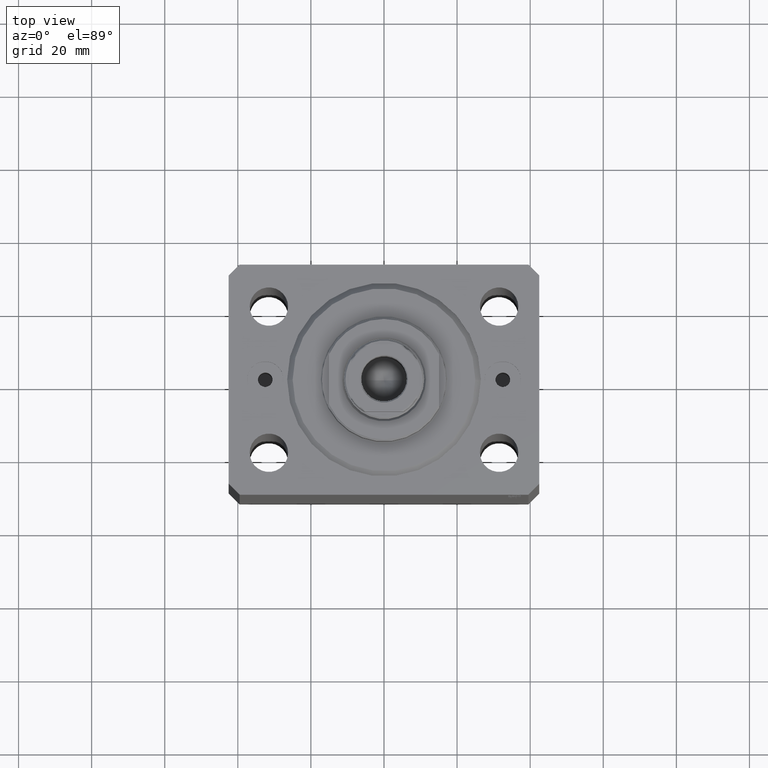
[diagram: clean part render]
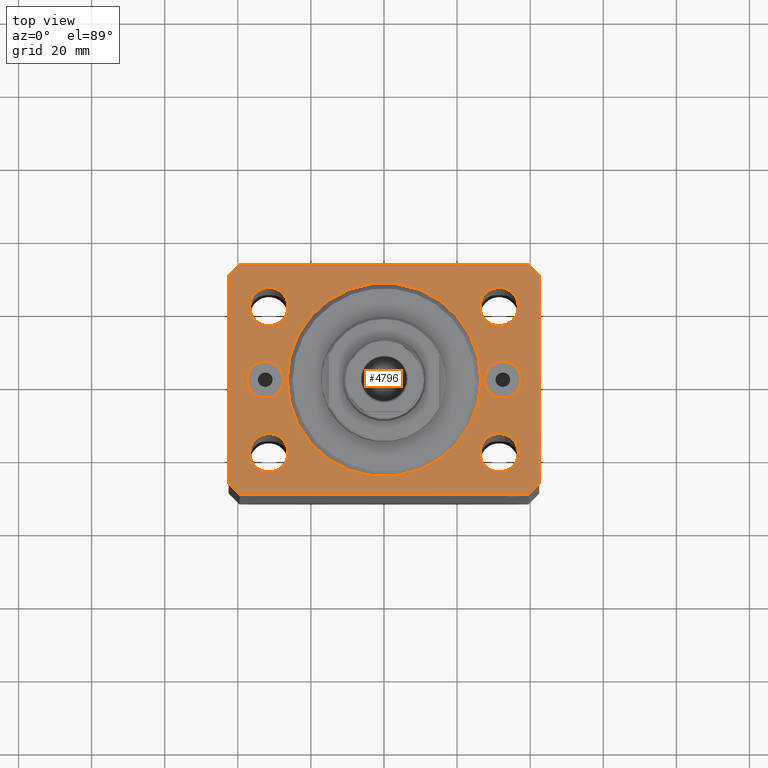
[diagram: same view with one face highlighted and labeled with its STEP entity id]
A machine part, top view. The second image highlights one B-rep face of the part: STEP entity #4796.
In plain terms, the highlighted planar face has unit normal (0, 0, 1).
Its self-contained STEP definition (entity closure, byte-faithful):
#336 = DIRECTION ( 'NONE',  ( 0.000000000000000000, 0.000000000000000000, 1.000000000000000000 ) ) ;
#441 = LINE ( 'NONE', #28034, #28733 ) ;
#531 = CARTESIAN_POINT ( 'NONE',  ( -36.75000000000000000, 19.99999999999999645, 0.000000000000000000 ) ) ;
#859 = AXIS2_PLACEMENT_3D ( 'NONE', #38908, #26102, #42480 ) ;
#942 = VERTEX_POINT ( 'NONE', #30725 ) ;
#965 = CARTESIAN_POINT ( 'NONE',  ( -26.25000000000000000, 19.99999999999999645, 0.000000000000000000 ) ) ;
#1036 = CARTESIAN_POINT ( 'NONE',  ( 42.50000000000000711, -28.50000000000000355, 0.000000000000000000 ) ) ;
#1198 = CARTESIAN_POINT ( 'NONE',  ( -39.50000000000000711, 31.50000000000000000, 0.000000000000000000 ) ) ;
#1244 = CIRCLE ( 'NONE', #26290, 5.249999999999997335 ) ;
#1426 = AXIS2_PLACEMENT_3D ( 'NONE', #40494, #34207, #41384 ) ;
#1685 = DIRECTION ( 'NONE',  ( -1.000000000000000000, 8.783410004945795812E-17, 0.000000000000000000 ) ) ;
#1702 = EDGE_LOOP ( 'NONE', ( #34948, #24466 ) ) ;
#1951 = EDGE_CURVE ( 'NONE', #37985, #36776, #38019, .T. ) ;
#2210 = EDGE_LOOP ( 'NONE', ( #23168, #29719 ) ) ;
#2405 = DIRECTION ( 'NONE',  ( 0.000000000000000000, 0.000000000000000000, 1.000000000000000000 ) ) ;
#2710 = VERTEX_POINT ( 'NONE', #28245 ) ;
#2769 = EDGE_CURVE ( 'NONE', #2710, #25869, #441, .T. ) ;
#2803 = DIRECTION ( 'NONE',  ( 1.000000000000000000, 0.000000000000000000, 0.000000000000000000 ) ) ;
#3518 = EDGE_LOOP ( 'NONE', ( #9665, #18573 ) ) ;
#3931 = CARTESIAN_POINT ( 'NONE',  ( -31.49999999999999289, -20.00000000000000355, 0.000000000000000000 ) ) ;
#3951 = DIRECTION ( 'NONE',  ( 0.000000000000000000, 0.000000000000000000, 1.000000000000000000 ) ) ;
#4039 = VERTEX_POINT ( 'NONE', #9977 ) ;
#4082 = EDGE_CURVE ( 'NONE', #942, #4039, #18602, .T. ) ;
#4129 = ORIENTED_EDGE ( 'NONE', *, *, #34305, .T. ) ;
#4440 = CIRCLE ( 'NONE', #859, 5.250000000000000888 ) ;
#4510 = VERTEX_POINT ( 'NONE', #965 ) ;
#4518 = DIRECTION ( 'NONE',  ( 0.000000000000000000, 0.000000000000000000, 1.000000000000000000 ) ) ;
#4577 = CARTESIAN_POINT ( 'NONE',  ( -27.50000000000000000, 0.000000000000000000, 0.000000000000000000 ) ) ;
#4796 = ADVANCED_FACE ( 'NONE', ( #41266, #20646, #37680, #30963, #37249, #27590, #13687, #30296 ), #34540, .T. ) ;
#5034 = CARTESIAN_POINT ( 'NONE',  ( -26.24999999999999289, -20.00000000000000355, 0.000000000000000000 ) ) ;
#5206 = EDGE_LOOP ( 'NONE', ( #20920, #23454, #31412, #10850, #39131, #33925, #4129, #41365 ) ) ;
#5495 = EDGE_CURVE ( 'NONE', #33773, #39754, #11475, .T. ) ;
#5681 = VERTEX_POINT ( 'NONE', #33948 ) ;
#5763 = DIRECTION ( 'NONE',  ( 1.000000000000000000, 0.000000000000000000, 0.000000000000000000 ) ) ;
#5939 = CIRCLE ( 'NONE', #7367, 5.250000000000000888 ) ;
#6204 = CARTESIAN_POINT ( 'NONE',  ( -32.50000000000000000, 0.000000000000000000, 0.000000000000000000 ) ) ;
#6372 = DIRECTION ( 'NONE',  ( 0.000000000000000000, 0.000000000000000000, 1.000000000000000000 ) ) ;
#6429 = LINE ( 'NONE', #31751, #21522 ) ;
#6474 = EDGE_CURVE ( 'NONE', #30125, #6548, #6429, .T. ) ;
#6530 = CARTESIAN_POINT ( 'NONE',  ( 0.000000000000000000, 0.000000000000000000, 0.000000000000000000 ) ) ;
#6548 = VERTEX_POINT ( 'NONE', #1036 ) ;
#6959 = DIRECTION ( 'NONE',  ( 0.000000000000000000, 0.000000000000000000, 1.000000000000000000 ) ) ;
#6988 = VECTOR ( 'NONE', #1685, 1000.000000000000000 ) ;
#7161 = DIRECTION ( 'NONE',  ( -0.7071067811865364705, 0.7071067811865584529, 0.000000000000000000 ) ) ;
#7367 = AXIS2_PLACEMENT_3D ( 'NONE', #22271, #43124, #36627 ) ;
#7597 = CARTESIAN_POINT ( 'NONE',  ( -42.50000000000000000, -28.50000000000000000, 0.000000000000000000 ) ) ;
#7612 = ORIENTED_EDGE ( 'NONE', *, *, #37125, .T. ) ;
#7742 = DIRECTION ( 'NONE',  ( 1.000000000000000000, 0.000000000000000000, 0.000000000000000000 ) ) ;
#7849 = AXIS2_PLACEMENT_3D ( 'NONE', #3931, #336, #24090 ) ;
#7933 = CARTESIAN_POINT ( 'NONE',  ( 31.49999999999999289, -20.00000000000000355, 0.000000000000000000 ) ) ;
#7944 = ORIENTED_EDGE ( 'NONE', *, *, #12324, .F. ) ;
#7991 = ORIENTED_EDGE ( 'NONE', *, *, #26614, .F. ) ;
#9149 = DIRECTION ( 'NONE',  ( 1.000000000000000000, 0.000000000000000000, 0.000000000000000000 ) ) ;
#9665 = ORIENTED_EDGE ( 'NONE', *, *, #15610, .F. ) ;
#9769 = EDGE_CURVE ( 'NONE', #4510, #32500, #4440, .T. ) ;
#9977 = CARTESIAN_POINT ( 'NONE',  ( 36.74999999999999289, -20.00000000000000355, 0.000000000000000000 ) ) ;
#10133 = CARTESIAN_POINT ( 'NONE',  ( 36.75000000000000000, 19.99999999999999289, 0.000000000000000000 ) ) ;
#10364 = ORIENTED_EDGE ( 'NONE', *, *, #4082, .F. ) ;
#10543 = CARTESIAN_POINT ( 'NONE',  ( 31.50000000000000000, 19.99999999999999289, 0.000000000000000000 ) ) ;
#10634 = EDGE_CURVE ( 'NONE', #28301, #25713, #30230, .T. ) ;
#10832 = LINE ( 'NONE', #1198, #21329 ) ;
#10850 = ORIENTED_EDGE ( 'NONE', *, *, #23752, .T. ) ;
#10973 = CARTESIAN_POINT ( 'NONE',  ( 26.50000000000000355, 0.000000000000000000, 0.000000000000000000 ) ) ;
#11475 = CIRCLE ( 'NONE', #30844, 5.250000000000000888 ) ;
#11525 = VERTEX_POINT ( 'NONE', #31377 ) ;
#11701 = CARTESIAN_POINT ( 'NONE',  ( 39.50000000000056843, 31.49999999999999289, 0.000000000000000000 ) ) ;
#11741 = AXIS2_PLACEMENT_3D ( 'NONE', #10543, #4518, #28493 ) ;
#11805 = CARTESIAN_POINT ( 'NONE',  ( 37.50000000000000000, 0.000000000000000000, 0.000000000000000000 ) ) ;
#12319 = EDGE_LOOP ( 'NONE', ( #30549, #7612 ) ) ;
#12324 = EDGE_CURVE ( 'NONE', #32500, #4510, #5939, .T. ) ;
#12758 = CIRCLE ( 'NONE', #37842, 4.999999999999997335 ) ;
#12887 = CARTESIAN_POINT ( 'NONE',  ( 26.25000000000000355, 19.99999999999999289, 0.000000000000000000 ) ) ;
#12891 = CARTESIAN_POINT ( 'NONE',  ( -42.50000000000000000, -28.50000000000000000, 0.000000000000000000 ) ) ;
#13205 = CARTESIAN_POINT ( 'NONE',  ( -26.50000000000000355, 3.245314017740485765E-15, 0.000000000000000000 ) ) ;
#13402 = DIRECTION ( 'NONE',  ( 0.000000000000000000, 0.000000000000000000, 1.000000000000000000 ) ) ;
#13687 = FACE_BOUND ( 'NONE', #1702, .T. ) ;
#13719 = CARTESIAN_POINT ( 'NONE',  ( -32.50000000000000000, 0.000000000000000000, 0.000000000000000000 ) ) ;
#13852 = EDGE_CURVE ( 'NONE', #36776, #37985, #21091, .T. ) ;
#13930 = CARTESIAN_POINT ( 'NONE',  ( -42.50000000000000000, 28.50000000000000000, 0.000000000000000000 ) ) ;
#14011 = LINE ( 'NONE', #34856, #37213 ) ;
#14064 = CIRCLE ( 'NONE', #21230, 5.249999999999997335 ) ;
#14112 = EDGE_CURVE ( 'NONE', #20424, #30469, #31113, .T. ) ;
#15367 = VERTEX_POINT ( 'NONE', #7597 ) ;
#15610 = EDGE_CURVE ( 'NONE', #30469, #20424, #1244, .T. ) ;
#15790 = CIRCLE ( 'NONE', #40854, 5.000000000000000888 ) ;
#16145 = ORIENTED_EDGE ( 'NONE', *, *, #21060, .F. ) ;
#16180 = CARTESIAN_POINT ( 'NONE',  ( -39.50000000000000711, 31.50000000000000000, 0.000000000000000000 ) ) ;
#16267 = LINE ( 'NONE', #12891, #21264 ) ;
#17207 = AXIS2_PLACEMENT_3D ( 'NONE', #6530, #6959, #37023 ) ;
#17317 = DIRECTION ( 'NONE',  ( 0.000000000000000000, -0.000000000000000000, -1.000000000000000000 ) ) ;
#17368 = CARTESIAN_POINT ( 'NONE',  ( 0.000000000000000000, 0.000000000000000000, 0.000000000000000000 ) ) ;
#17841 = VECTOR ( 'NONE', #43811, 1000.000000000000000 ) ;
#18412 = EDGE_CURVE ( 'NONE', #11525, #15367, #37698, .T. ) ;
#18573 = ORIENTED_EDGE ( 'NONE', *, *, #14112, .F. ) ;
#18602 = CIRCLE ( 'NONE', #1426, 5.249999999999997335 ) ;
#18792 = EDGE_LOOP ( 'NONE', ( #22708, #7944 ) ) ;
#19510 = AXIS2_PLACEMENT_3D ( 'NONE', #13719, #23581, #34122 ) ;
#20057 = DIRECTION ( 'NONE',  ( 1.000000000000000000, 0.000000000000000000, 0.000000000000000000 ) ) ;
#20424 = VERTEX_POINT ( 'NONE', #12887 ) ;
#20646 = FACE_BOUND ( 'NONE', #18792, .T. ) ;
#20920 = ORIENTED_EDGE ( 'NONE', *, *, #31436, .T. ) ;
#21060 = EDGE_CURVE ( 'NONE', #39754, #33773, #40784, .T. ) ;
#21091 = CIRCLE ( 'NONE', #31809, 26.50000000000000355 ) ;
#21112 = EDGE_CURVE ( 'NONE', #32081, #30125, #14011, .T. ) ;
#21230 = AXIS2_PLACEMENT_3D ( 'NONE', #7933, #35297, #28343 ) ;
#21264 = VECTOR ( 'NONE', #36901, 1000.000000000000000 ) ;
#21329 = VECTOR ( 'NONE', #28776, 1000.000000000000000 ) ;
#21522 = VECTOR ( 'NONE', #28166, 1000.000000000000000 ) ;
#22271 = CARTESIAN_POINT ( 'NONE',  ( -31.50000000000000000, 19.99999999999999645, 0.000000000000000000 ) ) ;
#22708 = ORIENTED_EDGE ( 'NONE', *, *, #9769, .F. ) ;
#22921 = CARTESIAN_POINT ( 'NONE',  ( -36.74999999999999289, -20.00000000000000355, 0.000000000000000000 ) ) ;
#23168 = ORIENTED_EDGE ( 'NONE', *, *, #1951, .F. ) ;
#23454 = ORIENTED_EDGE ( 'NONE', *, *, #31208, .T. ) ;
#23581 = DIRECTION ( 'NONE',  ( 0.000000000000000000, 0.000000000000000000, 1.000000000000000000 ) ) ;
#23752 = EDGE_CURVE ( 'NONE', #15367, #32081, #16267, .T. ) ;
#24090 = DIRECTION ( 'NONE',  ( 1.000000000000000000, 0.000000000000000000, 0.000000000000000000 ) ) ;
#24466 = ORIENTED_EDGE ( 'NONE', *, *, #39038, .F. ) ;
#25654 = CARTESIAN_POINT ( 'NONE',  ( 39.50000000000056843, 31.49999999999999289, 0.000000000000000000 ) ) ;
#25713 = VERTEX_POINT ( 'NONE', #31287 ) ;
#25869 = VERTEX_POINT ( 'NONE', #11701 ) ;
#25886 = LINE ( 'NONE', #25654, #6988 ) ;
#26102 = DIRECTION ( 'NONE',  ( 0.000000000000000000, 0.000000000000000000, 1.000000000000000000 ) ) ;
#26290 = AXIS2_PLACEMENT_3D ( 'NONE', #37093, #6372, #20057 ) ;
#26614 = EDGE_CURVE ( 'NONE', #4039, #942, #14064, .T. ) ;
#27056 = CARTESIAN_POINT ( 'NONE',  ( -39.50000000000000711, -31.50000000000000000, 0.000000000000000000 ) ) ;
#27146 = CARTESIAN_POINT ( 'NONE',  ( 32.50000000000000000, 0.000000000000000000, 0.000000000000000000 ) ) ;
#27590 = FACE_BOUND ( 'NONE', #2210, .T. ) ;
#27607 = DIRECTION ( 'NONE',  ( 0.000000000000000000, -1.000000000000000000, 0.000000000000000000 ) ) ;
#27801 = VECTOR ( 'NONE', #27607, 1000.000000000000000 ) ;
#28034 = CARTESIAN_POINT ( 'NONE',  ( 42.50000000000051870, 28.49999999999995381, 0.000000000000000000 ) ) ;
#28166 = DIRECTION ( 'NONE',  ( 0.7071067811865483499, 0.7071067811865466846, 0.000000000000000000 ) ) ;
#28245 = CARTESIAN_POINT ( 'NONE',  ( 42.50000000000051870, 28.49999999999995381, 0.000000000000000000 ) ) ;
#28277 = EDGE_LOOP ( 'NONE', ( #7991, #10364 ) ) ;
#28301 = VERTEX_POINT ( 'NONE', #4577 ) ;
#28343 = DIRECTION ( 'NONE',  ( 1.000000000000000000, 0.000000000000000000, 0.000000000000000000 ) ) ;
#28493 = DIRECTION ( 'NONE',  ( 1.000000000000000000, 0.000000000000000000, 0.000000000000000000 ) ) ;
#28733 = VECTOR ( 'NONE', #7161, 1000.000000000000114 ) ;
#28776 = DIRECTION ( 'NONE',  ( -0.7071067811865471286, -0.7071067811865479058, 0.000000000000000000 ) ) ;
#29719 = ORIENTED_EDGE ( 'NONE', *, *, #13852, .F. ) ;
#29914 = LINE ( 'NONE', #37321, #17841 ) ;
#30125 = VERTEX_POINT ( 'NONE', #42943 ) ;
#30230 = CIRCLE ( 'NONE', #19510, 5.000000000000000888 ) ;
#30296 = FACE_BOUND ( 'NONE', #12319, .T. ) ;
#30458 = CARTESIAN_POINT ( 'NONE',  ( 0.000000000000000000, 0.000000000000000000, 0.000000000000000000 ) ) ;
#30469 = VERTEX_POINT ( 'NONE', #10133 ) ;
#30549 = ORIENTED_EDGE ( 'NONE', *, *, #33866, .T. ) ;
#30725 = CARTESIAN_POINT ( 'NONE',  ( 26.24999999999999645, -20.00000000000000355, 0.000000000000000000 ) ) ;
#30844 = AXIS2_PLACEMENT_3D ( 'NONE', #34658, #3951, #7742 ) ;
#30956 = DIRECTION ( 'NONE',  ( 1.000000000000000000, 0.000000000000000000, 0.000000000000000000 ) ) ;
#30963 = FACE_BOUND ( 'NONE', #28277, .T. ) ;
#31044 = DIRECTION ( 'NONE',  ( 0.000000000000000000, 0.000000000000000000, 1.000000000000000000 ) ) ;
#31113 = CIRCLE ( 'NONE', #11741, 5.249999999999997335 ) ;
#31208 = EDGE_CURVE ( 'NONE', #43966, #11525, #10832, .T. ) ;
#31287 = CARTESIAN_POINT ( 'NONE',  ( -37.50000000000000000, 6.123233995736768255E-16, 0.000000000000000000 ) ) ;
#31377 = CARTESIAN_POINT ( 'NONE',  ( -42.50000000000000000, 28.50000000000000000, 0.000000000000000000 ) ) ;
#31412 = ORIENTED_EDGE ( 'NONE', *, *, #18412, .T. ) ;
#31436 = EDGE_CURVE ( 'NONE', #25869, #43966, #25886, .T. ) ;
#31497 = DIRECTION ( 'NONE',  ( 1.000000000000000000, 0.000000000000000000, 0.000000000000000000 ) ) ;
#31751 = CARTESIAN_POINT ( 'NONE',  ( 39.50000000000000711, -31.50000000000000000, 0.000000000000000000 ) ) ;
#31809 = AXIS2_PLACEMENT_3D ( 'NONE', #17368, #31044, #2803 ) ;
#32081 = VERTEX_POINT ( 'NONE', #27056 ) ;
#32500 = VERTEX_POINT ( 'NONE', #531 ) ;
#33773 = VERTEX_POINT ( 'NONE', #22921 ) ;
#33866 = EDGE_CURVE ( 'NONE', #36944, #5681, #12758, .T. ) ;
#33925 = ORIENTED_EDGE ( 'NONE', *, *, #6474, .T. ) ;
#33948 = CARTESIAN_POINT ( 'NONE',  ( 27.50000000000000355, 6.123233995736762338E-16, 0.000000000000000000 ) ) ;
#34122 = DIRECTION ( 'NONE',  ( 1.000000000000000000, 0.000000000000000000, 0.000000000000000000 ) ) ;
#34207 = DIRECTION ( 'NONE',  ( 0.000000000000000000, 0.000000000000000000, 1.000000000000000000 ) ) ;
#34305 = EDGE_CURVE ( 'NONE', #6548, #2710, #29914, .T. ) ;
#34351 = AXIS2_PLACEMENT_3D ( 'NONE', #27146, #40818, #30956 ) ;
#34540 = PLANE ( 'NONE',  #17207 ) ;
#34570 = CARTESIAN_POINT ( 'NONE',  ( 32.50000000000000000, 0.000000000000000000, 0.000000000000000000 ) ) ;
#34658 = CARTESIAN_POINT ( 'NONE',  ( -31.49999999999999289, -20.00000000000000355, 0.000000000000000000 ) ) ;
#34784 = DIRECTION ( 'NONE',  ( 1.000000000000000000, 0.000000000000000000, 0.000000000000000000 ) ) ;
#34856 = CARTESIAN_POINT ( 'NONE',  ( -39.50000000000000711, -31.50000000000000000, 0.000000000000000000 ) ) ;
#34948 = ORIENTED_EDGE ( 'NONE', *, *, #10634, .F. ) ;
#35297 = DIRECTION ( 'NONE',  ( 0.000000000000000000, 0.000000000000000000, 1.000000000000000000 ) ) ;
#36627 = DIRECTION ( 'NONE',  ( 1.000000000000000000, 0.000000000000000000, 0.000000000000000000 ) ) ;
#36776 = VERTEX_POINT ( 'NONE', #13205 ) ;
#36901 = DIRECTION ( 'NONE',  ( 0.7071067811865471286, -0.7071067811865479058, 0.000000000000000000 ) ) ;
#36944 = VERTEX_POINT ( 'NONE', #11805 ) ;
#37023 = DIRECTION ( 'NONE',  ( 1.000000000000000000, 0.000000000000000000, -0.000000000000000000 ) ) ;
#37086 = EDGE_LOOP ( 'NONE', ( #16145, #43162 ) ) ;
#37093 = CARTESIAN_POINT ( 'NONE',  ( 31.50000000000000000, 19.99999999999999289, 0.000000000000000000 ) ) ;
#37125 = EDGE_CURVE ( 'NONE', #5681, #36944, #37238, .T. ) ;
#37213 = VECTOR ( 'NONE', #31497, 1000.000000000000000 ) ;
#37238 = CIRCLE ( 'NONE', #34351, 4.999999999999997335 ) ;
#37249 = FACE_BOUND ( 'NONE', #37086, .T. ) ;
#37321 = CARTESIAN_POINT ( 'NONE',  ( 42.50000000000000711, -28.50000000000000355, 0.000000000000000000 ) ) ;
#37680 = FACE_BOUND ( 'NONE', #3518, .T. ) ;
#37698 = LINE ( 'NONE', #13930, #27801 ) ;
#37842 = AXIS2_PLACEMENT_3D ( 'NONE', #34570, #17317, #34784 ) ;
#37985 = VERTEX_POINT ( 'NONE', #10973 ) ;
#38019 = CIRCLE ( 'NONE', #40151, 26.50000000000000355 ) ;
#38908 = CARTESIAN_POINT ( 'NONE',  ( -31.50000000000000000, 19.99999999999999645, 0.000000000000000000 ) ) ;
#39038 = EDGE_CURVE ( 'NONE', #25713, #28301, #15790, .T. ) ;
#39131 = ORIENTED_EDGE ( 'NONE', *, *, #21112, .T. ) ;
#39754 = VERTEX_POINT ( 'NONE', #5034 ) ;
#40151 = AXIS2_PLACEMENT_3D ( 'NONE', #30458, #13402, #9149 ) ;
#40494 = CARTESIAN_POINT ( 'NONE',  ( 31.49999999999999289, -20.00000000000000355, 0.000000000000000000 ) ) ;
#40784 = CIRCLE ( 'NONE', #7849, 5.250000000000000888 ) ;
#40818 = DIRECTION ( 'NONE',  ( 0.000000000000000000, -0.000000000000000000, -1.000000000000000000 ) ) ;
#40854 = AXIS2_PLACEMENT_3D ( 'NONE', #6204, #2405, #5763 ) ;
#41266 = FACE_OUTER_BOUND ( 'NONE', #5206, .T. ) ;
#41365 = ORIENTED_EDGE ( 'NONE', *, *, #2769, .T. ) ;
#41384 = DIRECTION ( 'NONE',  ( 1.000000000000000000, 0.000000000000000000, 0.000000000000000000 ) ) ;
#42480 = DIRECTION ( 'NONE',  ( 1.000000000000000000, 0.000000000000000000, 0.000000000000000000 ) ) ;
#42943 = CARTESIAN_POINT ( 'NONE',  ( 39.50000000000000711, -31.50000000000000000, 0.000000000000000000 ) ) ;
#43124 = DIRECTION ( 'NONE',  ( 0.000000000000000000, 0.000000000000000000, 1.000000000000000000 ) ) ;
#43162 = ORIENTED_EDGE ( 'NONE', *, *, #5495, .F. ) ;
#43811 = DIRECTION ( 'NONE',  ( 8.886653596232072440E-15, 1.000000000000000000, 0.000000000000000000 ) ) ;
#43966 = VERTEX_POINT ( 'NONE', #16180 ) ;